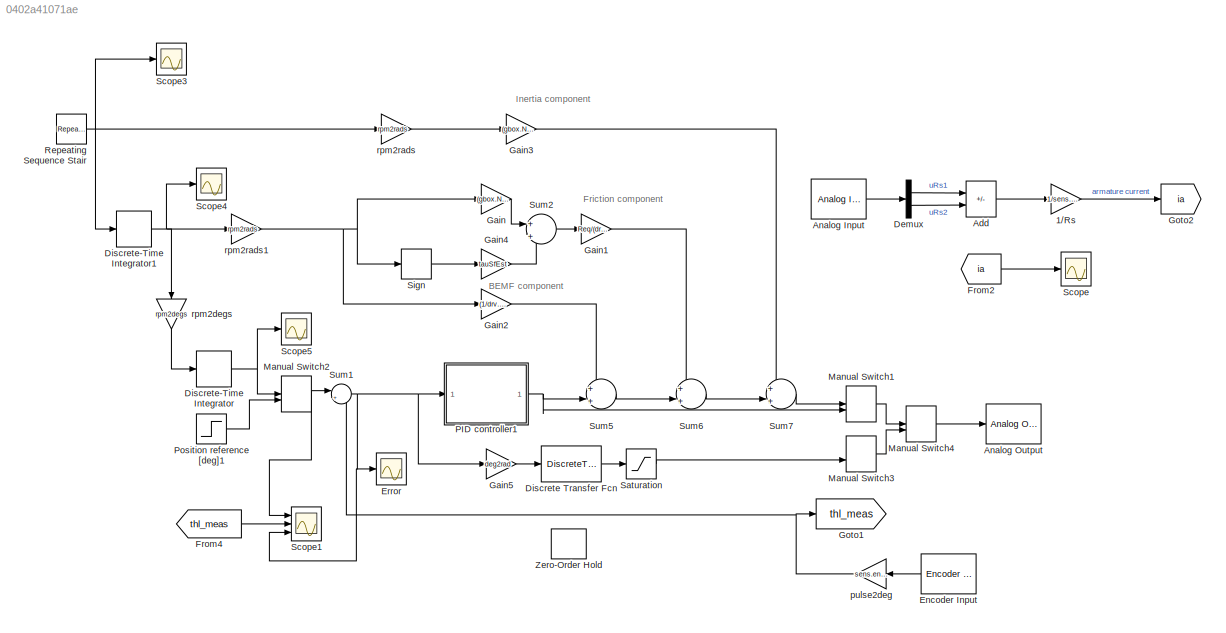
MODEL slx_0402a41071ae
KIND model
CONFIG AbsTol = auto
CONFIG EnableMultiTasking = off
CONFIG FixedStep = 0.0001
CONFIG MaxStep = auto
CONFIG MinStep = auto
CONFIG RelTol = 1e-3
CONFIG SampleTimeConstraint = Unconstrained
CONFIG SolverName = FixedStepDiscrete
CONFIG StartTime = 0.0
CONFIG StopTime = 30
BLOCK [Gain] 1//Rs
  Gain = 1/sens.curr.Rs
BLOCK [Sum] Add
  IconShape = rectangular
  Inputs = +-
  Ports = [2, 1]
BLOCK [Reference] Analog Input  REF=sldrtlib/Analog Input
  AttributesFormatString = National Instruments\nPCI-6221 [auto]
  Ports = [0, 1]
  SourceBlock = sldrtlib/Analog Input
  SourceProductBaseCode = WT
  SourceType = Simulink Desktop Real-Time Analog Input
BLOCK [Reference] Analog Output  REF=sldrtlib/Analog Output
  AttributesFormatString = National Instruments\nPCI-6221 [auto]
  Ports = [1]
  SourceBlock = sldrtlib/Analog Output
  SourceProductBaseCode = WT
  SourceType = Simulink Desktop Real-Time Analog Output
BLOCK [Demux] Demux
  Outputs = 2
  Ports = [1, 2]
BLOCK [DiscreteTransferFcn] Discrete Transfer Fcn
  Denominator = denC_d
  InputPortMap = u0
  Numerator = numC_d
  Ports = [1, 1]
  SampleTime = Ts
BLOCK [DiscreteIntegrator] Discrete-Time Integrator
  ICPrevOutput = DiscIntNeverNeededParam
  ICPrevScaledInput = DiscIntNeverNeededParam
  InitialConditionSetting = Auto
  IntegratorMethod = Integration: Backward Euler
  Ports = [1, 1]
  SampleTime = Ts
BLOCK [DiscreteIntegrator] Discrete-Time Integrator1
  ICPrevOutput = DiscIntNeverNeededParam
  ICPrevScaledInput = DiscIntNeverNeededParam
  InitialConditionSetting = Auto
  IntegratorMethod = Integration: Backward Euler
  Ports = [1, 1]
  SampleTime = Ts
BLOCK [Reference] Encoder Input  REF=sldrtlib/Encoder Input
  AttributesFormatString = National Instruments\nPCI-6221 [auto]
  NameLocation = top
  Ports = [0, 1]
  SourceBlock = sldrtlib/Encoder Input
  SourceProductBaseCode = WT
  SourceType = Simulink Desktop Real-Time Encoder Input
BLOCK [Scope] Error
  Floating = off
  NumInputPorts = 1
  Ports = [1]
  ScopeSpecificationString = Simulink.scopes.TimeScopeBlockCfg('CurrentConfiguration', extmgr.ConfigurationSet(extmgr.Configuration('Core','General UI',true),extmgr.Configuration('Core','Source UI',true),extmgr.Configuration('Sources','WiredSimulink',true,'DataLoggingVariableName','ScopeData1'),extmgr.Configuration('Visuals','Time Domain',true,'SerializedDisplays',{struct('MinYLimReal','-10.3275','MaxYLimReal','10.1475','YLab...<+1362ch>
BLOCK [From] From2
  GotoTag = ia
BLOCK [From] From4
  GotoTag = thl_meas
BLOCK [Gain] Gain
  Gain = (gbox.N)^2*BeqEst
BLOCK [Gain] Gain1
  Gain = Req/(drv.dcgain*mot.Kt*gbox.N)
BLOCK [Gain] Gain2
  Gain = (1/drv.dcgain)*mot.Ke*gbox.N
BLOCK [Gain] Gain3
  Gain = (gbox.N*Req*JeqEst)/(drv.dcgain*mot.Kt)
BLOCK [Gain] Gain4
  Gain = tauSfEst
BLOCK [Gain] Gain5
  Gain = deg2rad
BLOCK [Goto] Goto1
  GotoTag = thl_meas
BLOCK [Goto] Goto2
  GotoTag = ia
BLOCK [ManualSwitch] Manual Switch1
  CurrentSetting = 0
BLOCK [ManualSwitch] Manual Switch2
BLOCK [ManualSwitch] Manual Switch3
  CurrentSetting = 0
BLOCK [ManualSwitch] Manual Switch4
  CurrentSetting = 0
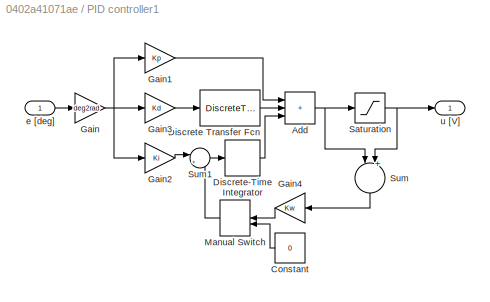
BLOCK [SubSystem] PID controller1
  Ports = [1, 1]
  RequestExecContextInheritance = off
BLOCK [Sum] PID controller1/Add
  IconShape = rectangular
  Inputs = +++
  Ports = [3, 1]
BLOCK [Constant] PID controller1/Constant
  Value = 0
BLOCK [DiscreteTransferFcn] PID controller1/Discrete Transfer Fcn
  Denominator = [(Tl+Ts) Tl]
  InputPortMap = u0
  Numerator = [1 -1]
  Ports = [1, 1]
  SampleTime = Ts
BLOCK [DiscreteIntegrator] PID controller1/Discrete-Time Integrator
  ICPrevOutput = DiscIntNeverNeededParam
  ICPrevScaledInput = DiscIntNeverNeededParam
  InitialConditionSetting = Auto
  IntegratorMethod = Integration: Backward Euler
  Ports = [1, 1]
  SampleTime = Ts
BLOCK [Gain] PID controller1/Gain
  Gain = deg2rad
BLOCK [Gain] PID controller1/Gain1
  Gain = Kp
BLOCK [Gain] PID controller1/Gain2
  Gain = Ki
BLOCK [Gain] PID controller1/Gain3
  Gain = Kd
BLOCK [Gain] PID controller1/Gain4
  Gain = Kw
BLOCK [ManualSwitch] PID controller1/Manual Switch
  NameLocation = top
BLOCK [Saturate] PID controller1/Saturation
  LowerLimit = -10
  UpperLimit = 10
BLOCK [Sum] PID controller1/Sum
  Inputs = ||+-||
  NameLocation = left
  Ports = [2, 1]
BLOCK [Sum] PID controller1/Sum1
  Inputs = |+-
  Ports = [2, 1]
BLOCK [Inport] PID controller1/e [deg]
BLOCK [Outport] PID controller1/u [V]
BLOCK [Step] Position reference [deg]1
  After = 360
  SampleTime = Ts
BLOCK [Reference] Repeating Sequence Stair  REF=simulink/Sources/Repeating
Sequence
Stair
  Ports = [0, 1]
  SourceBlock = simulink/Sources/Repeating\nSequence\nStair
  SourceProductBaseCode = SL
  SourceType = Repeating Sequence Stair
BLOCK [Saturate] Saturation
  LowerLimit = -10
  UpperLimit = 10
BLOCK [Scope] Scope
  Floating = off
  NumInputPorts = 1
  Ports = [1]
  ScopeSpecificationString = Simulink.scopes.TimeScopeBlockCfg('CurrentConfiguration', extmgr.ConfigurationSet(extmgr.Configuration('Core','General UI',true),extmgr.Configuration('Core','Source UI',true),extmgr.Configuration('Sources','WiredSimulink',true,'DataLoggingVariableName','ScopeEst','DataLogging',true,'DataLoggingSaveFormat','StructureWithTime'),extmgr.Configuration('Visuals','Time Domain',true,'SerializedDisplays',{...<+2680ch>
BLOCK [Scope] Scope1
  Floating = off
  NumInputPorts = 3
  Ports = [3]
  ScopeSpecificationString = Simulink.scopes.TimeScopeBlockCfg('CurrentConfiguration', extmgr.ConfigurationSet(extmgr.Configuration('Core','General UI',true),extmgr.Configuration('Core','Source UI',true),extmgr.Configuration('Sources','WiredSimulink',true,'DataLoggingVariableName','discretePID','DataLogging',true,'DataLoggingSaveFormat','StructureWithTime','SampleTime','Ts'),extmgr.Configuration('Visuals','Time Domain',true,'...<+1506ch>
BLOCK [Scope] Scope3
  Floating = off
  NumInputPorts = 1
  Ports = [1]
  ScopeSpecificationString = Simulink.scopes.TimeScopeBlockCfg('CurrentConfiguration', extmgr.ConfigurationSet(extmgr.Configuration('Core','General UI',true),extmgr.Configuration('Core','Source UI',true),extmgr.Configuration('Sources','WiredSimulink',true,'DataLoggingVariableName','ScopeData2'),extmgr.Configuration('Visuals','Time Domain',true,'SerializedDisplays',{struct('MinYLimReal','-88.29499','MaxYLimReal','240.52774','Y...<+1442ch>
BLOCK [Scope] Scope4
  Floating = off
  NumInputPorts = 1
  Ports = [1]
  ScopeSpecificationString = Simulink.scopes.TimeScopeBlockCfg('CurrentConfiguration', extmgr.ConfigurationSet(extmgr.Configuration('Core','General UI',true),extmgr.Configuration('Core','Source UI',true),extmgr.Configuration('Sources','WiredSimulink',true,'DataLoggingVariableName','ScopeData3'),extmgr.Configuration('Visuals','Time Domain',true),extmgr.Configuration('Tools','Plot Navigation',true),extmgr.Configuration('Tools',...<+40ch>
BLOCK [Scope] Scope5
  Floating = off
  NumInputPorts = 1
  Ports = [1]
  ScopeSpecificationString = Simulink.scopes.TimeScopeBlockCfg('CurrentConfiguration', extmgr.ConfigurationSet(extmgr.Configuration('Core','General UI',true),extmgr.Configuration('Core','Source UI',true),extmgr.Configuration('Sources','WiredSimulink',true,'DataLoggingVariableName','ScopeData4'),extmgr.Configuration('Visuals','Time Domain',true,'SerializedDisplays',{struct('MinYLimReal','-337.5','MaxYLimReal','3037.5','YLabelR...<+1377ch>
BLOCK [Signum] Sign
BLOCK [Sum] Sum1
  Inputs = |+-
  Ports = [2, 1]
BLOCK [Sum] Sum2
  Inputs = +|+
  Ports = [2, 1]
BLOCK [Sum] Sum5
  Inputs = +|+||
  Ports = [2, 1]
BLOCK [Sum] Sum6
  Inputs = +|+||
  Ports = [2, 1]
BLOCK [Sum] Sum7
  Inputs = +|+||
  Ports = [2, 1]
BLOCK [ZeroOrderHold] Zero-Order Hold
  SampleTime = Ts
BLOCK [Gain] pulse2deg
  Gain = sens.enc.pulse2deg
BLOCK [Gain] rpm2degs
  Gain = rpm2degs
  NameLocation = left
BLOCK [Gain] rpm2rads
  Gain = rpm2rads
BLOCK [Gain] rpm2rads1
  Gain = rpm2rads
ANNOTATION (root): BEMF component
ANNOTATION (root): Friction component
ANNOTATION (root): Inertia component
LINE 1//Rs:1 -> Goto2:1
LINE Add:1 -> 1//Rs:1
LINE Analog Input:1 -> Demux:1
LINE Demux:1 -> Add:1
LINE Demux:2 -> Add:2
LINE Discrete Transfer Fcn:1 -> Saturation:1
NET Discrete-Time Integrator1:1 -> Scope4:1, rpm2degs:1, rpm2rads1:1
NET Discrete-Time Integrator:1 -> Manual Switch2:1, Scope5:1
LINE Encoder Input:1 -> pulse2deg:1
LINE From2:1 -> Scope:1
LINE From4:1 -> Scope1:2
LINE Gain1:1 -> Sum6:1
LINE Gain2:1 -> Sum5:1
LINE Gain3:1 -> Sum7:1
LINE Gain4:1 -> Sum2:2
LINE Gain5:1 -> Discrete Transfer Fcn:1
LINE Gain:1 -> Sum2:1
LINE Manual Switch1:1 -> Manual Switch4:1
NET Manual Switch2:1 -> Scope1:1, Sum1:1
LINE Manual Switch3:1 -> Manual Switch4:2
LINE Manual Switch4:1 -> Analog Output:1
NET PID controller1/Add:1 -> PID controller1/Saturation:1, PID controller1/Sum:1
LINE PID controller1/Constant:1 -> PID controller1/Manual Switch:2
LINE PID controller1/Discrete Transfer Fcn:1 -> PID controller1/Add:2
LINE PID controller1/Discrete-Time Integrator:1 -> PID controller1/Add:3
LINE PID controller1/Gain1:1 -> PID controller1/Add:1
LINE PID controller1/Gain2:1 -> PID controller1/Sum1:1
LINE PID controller1/Gain3:1 -> PID controller1/Discrete Transfer Fcn:1
LINE PID controller1/Gain4:1 -> PID controller1/Manual Switch:1
NET PID controller1/Gain:1 -> PID controller1/Gain1:1, PID controller1/Gain2:1, PID controller1/Gain3:1
LINE PID controller1/Manual Switch:1 -> PID controller1/Sum1:2
NET PID controller1/Saturation:1 -> PID controller1/Sum:2, PID controller1/u [V]:1
LINE PID controller1/Sum1:1 -> PID controller1/Discrete-Time Integrator:1
LINE PID controller1/Sum:1 -> PID controller1/Gain4:1
LINE PID controller1/e [deg]:1 -> PID controller1/Gain:1
NET PID controller1:1 -> Manual Switch1:2, Sum5:2
LINE Position reference [deg]1:1 -> Manual Switch2:2
NET Repeating Sequence Stair:1 -> Discrete-Time Integrator1:1, Scope3:1, rpm2rads:1
LINE Saturation:1 -> Manual Switch3:2
LINE Sign:1 -> Gain4:1
NET Sum1:1 -> Error:1, Gain5:1, PID controller1:1, Scope1:3
LINE Sum2:1 -> Gain1:1
LINE Sum5:1 -> Sum6:2
LINE Sum6:1 -> Sum7:2
LINE Sum7:1 -> Manual Switch1:1
NET pulse2deg:1 -> Goto1:1, Sum1:2
LINE rpm2degs:1 -> Discrete-Time Integrator:1
NET rpm2rads1:1 -> Gain2:1, Gain:1, Sign:1
LINE rpm2rads:1 -> Gain3:1
note: NET lines group one-source signal fan-out (src -> all destinations, sorted); 1:1 wires keep LINE
